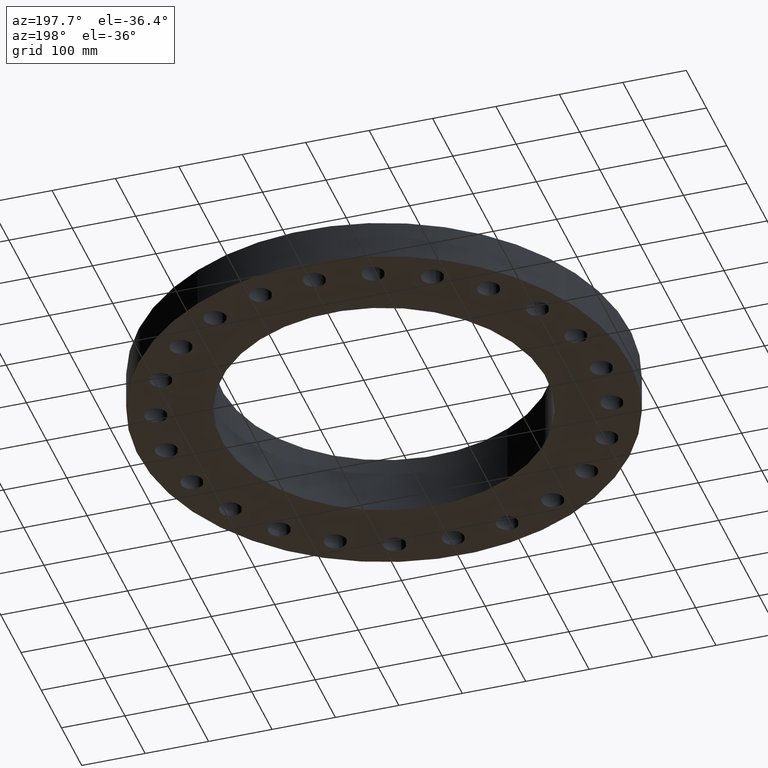
[diagram: clean part render]
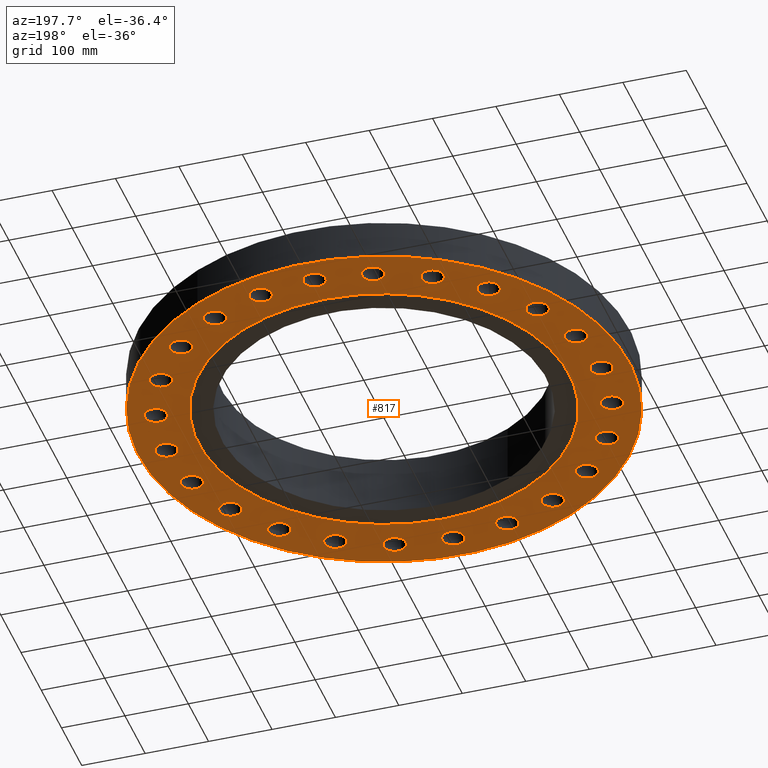
[diagram: same view with one face highlighted and labeled with its STEP entity id]
A machine part, auxiliary view. The second image highlights one B-rep face of the part: STEP entity #817.
In plain terms, the highlighted planar face has unit normal (0, 0, -1).
Its self-contained STEP definition (entity closure, byte-faithful):
#51=AXIS2_PLACEMENT_3D('Circle Axis2P3D',#49,#50,$) ;
#77=AXIS2_PLACEMENT_3D('Circle Axis2P3D',#75,#76,$) ;
#99=AXIS2_PLACEMENT_3D('Circle Axis2P3D',#97,#98,$) ;
#134=AXIS2_PLACEMENT_3D('Circle Axis2P3D',#132,#133,$) ;
#366=AXIS2_PLACEMENT_3D('Plane Axis2P3D',#363,#364,#365) ;
#370=AXIS2_PLACEMENT_3D('Circle Axis2P3D',#368,#369,$) ;
#379=AXIS2_PLACEMENT_3D('Circle Axis2P3D',#377,#378,$) ;
#405=AXIS2_PLACEMENT_3D('Circle Axis2P3D',#403,#404,$) ;
#414=AXIS2_PLACEMENT_3D('Circle Axis2P3D',#412,#413,$) ;
#423=AXIS2_PLACEMENT_3D('Circle Axis2P3D',#421,#422,$) ;
#432=AXIS2_PLACEMENT_3D('Circle Axis2P3D',#430,#431,$) ;
#441=AXIS2_PLACEMENT_3D('Circle Axis2P3D',#439,#440,$) ;
#450=AXIS2_PLACEMENT_3D('Circle Axis2P3D',#448,#449,$) ;
#459=AXIS2_PLACEMENT_3D('Circle Axis2P3D',#457,#458,$) ;
#468=AXIS2_PLACEMENT_3D('Circle Axis2P3D',#466,#467,$) ;
#477=AXIS2_PLACEMENT_3D('Circle Axis2P3D',#475,#476,$) ;
#486=AXIS2_PLACEMENT_3D('Circle Axis2P3D',#484,#485,$) ;
#495=AXIS2_PLACEMENT_3D('Circle Axis2P3D',#493,#494,$) ;
#504=AXIS2_PLACEMENT_3D('Circle Axis2P3D',#502,#503,$) ;
#513=AXIS2_PLACEMENT_3D('Circle Axis2P3D',#511,#512,$) ;
#522=AXIS2_PLACEMENT_3D('Circle Axis2P3D',#520,#521,$) ;
#531=AXIS2_PLACEMENT_3D('Circle Axis2P3D',#529,#530,$) ;
#540=AXIS2_PLACEMENT_3D('Circle Axis2P3D',#538,#539,$) ;
#549=AXIS2_PLACEMENT_3D('Circle Axis2P3D',#547,#548,$) ;
#558=AXIS2_PLACEMENT_3D('Circle Axis2P3D',#556,#557,$) ;
#567=AXIS2_PLACEMENT_3D('Circle Axis2P3D',#565,#566,$) ;
#576=AXIS2_PLACEMENT_3D('Circle Axis2P3D',#574,#575,$) ;
#585=AXIS2_PLACEMENT_3D('Circle Axis2P3D',#583,#584,$) ;
#594=AXIS2_PLACEMENT_3D('Circle Axis2P3D',#592,#593,$) ;
#603=AXIS2_PLACEMENT_3D('Circle Axis2P3D',#601,#602,$) ;
#612=AXIS2_PLACEMENT_3D('Circle Axis2P3D',#610,#611,$) ;
#621=AXIS2_PLACEMENT_3D('Circle Axis2P3D',#619,#620,$) ;
#630=AXIS2_PLACEMENT_3D('Circle Axis2P3D',#628,#629,$) ;
#639=AXIS2_PLACEMENT_3D('Circle Axis2P3D',#637,#638,$) ;
#648=AXIS2_PLACEMENT_3D('Circle Axis2P3D',#646,#647,$) ;
#657=AXIS2_PLACEMENT_3D('Circle Axis2P3D',#655,#656,$) ;
#666=AXIS2_PLACEMENT_3D('Circle Axis2P3D',#664,#665,$) ;
#675=AXIS2_PLACEMENT_3D('Circle Axis2P3D',#673,#674,$) ;
#684=AXIS2_PLACEMENT_3D('Circle Axis2P3D',#682,#683,$) ;
#693=AXIS2_PLACEMENT_3D('Circle Axis2P3D',#691,#692,$) ;
#702=AXIS2_PLACEMENT_3D('Circle Axis2P3D',#700,#701,$) ;
#711=AXIS2_PLACEMENT_3D('Circle Axis2P3D',#709,#710,$) ;
#720=AXIS2_PLACEMENT_3D('Circle Axis2P3D',#718,#719,$) ;
#729=AXIS2_PLACEMENT_3D('Circle Axis2P3D',#727,#728,$) ;
#738=AXIS2_PLACEMENT_3D('Circle Axis2P3D',#736,#737,$) ;
#747=AXIS2_PLACEMENT_3D('Circle Axis2P3D',#745,#746,$) ;
#756=AXIS2_PLACEMENT_3D('Circle Axis2P3D',#754,#755,$) ;
#765=AXIS2_PLACEMENT_3D('Circle Axis2P3D',#763,#764,$) ;
#774=AXIS2_PLACEMENT_3D('Circle Axis2P3D',#772,#773,$) ;
#783=AXIS2_PLACEMENT_3D('Circle Axis2P3D',#781,#782,$) ;
#792=AXIS2_PLACEMENT_3D('Circle Axis2P3D',#790,#791,$) ;
#801=AXIS2_PLACEMENT_3D('Circle Axis2P3D',#799,#800,$) ;
#810=AXIS2_PLACEMENT_3D('Circle Axis2P3D',#808,#809,$) ;
#44=CARTESIAN_POINT('Vertex',(12.8944680323,0.330803621638,0.)) ;
#49=CARTESIAN_POINT('Axis2P3D Location',(13.5000000001,0.,0.)) ;
#53=CARTESIAN_POINT('Vertex',(14.1055319678,-0.330803621638,0.)) ;
#75=CARTESIAN_POINT('Axis2P3D Location',(13.5000000001,0.,0.)) ;
#97=CARTESIAN_POINT('Axis2P3D Location',(0.,0.,1.67844740731E-015)) ;
#101=CARTESIAN_POINT('Vertex',(-7.31123946374,-13.3831340689,1.67844740731E-015)) ;
#103=CARTESIAN_POINT('Vertex',(7.31123946374,13.3831340689,1.67844740731E-015)) ;
#132=CARTESIAN_POINT('Axis2P3D Location',(0.,0.,1.67844740731E-015)) ;
#363=CARTESIAN_POINT('Axis2P3D Location',(0.,10.1,0.)) ;
#368=CARTESIAN_POINT('Axis2P3D Location',(0.,0.,0.)) ;
#372=CARTESIAN_POINT('Vertex',(-5.51339369397,-10.0921994618,0.)) ;
#374=CARTESIAN_POINT('Vertex',(5.51339369397,10.0921994618,0.)) ;
#377=CARTESIAN_POINT('Axis2P3D Location',(0.,0.,0.)) ;
#403=CARTESIAN_POINT('Axis2P3D Location',(13.039998655,-3.4940571089,0.)) ;
#407=CARTESIAN_POINT('Vertex',(12.5407179662,-3.01780214167,0.)) ;
#409=CARTESIAN_POINT('Vertex',(13.5392793437,-3.97031207613,0.)) ;
#412=CARTESIAN_POINT('Axis2P3D Location',(13.039998655,-3.4940571089,0.)) ;
#421=CARTESIAN_POINT('Axis2P3D Location',(11.6913429511,-6.75000000003,0.)) ;
#425=CARTESIAN_POINT('Vertex',(11.3323386951,-6.16074967617,0.)) ;
#427=CARTESIAN_POINT('Vertex',(12.0503472072,-7.33925032388,0.)) ;
#430=CARTESIAN_POINT('Axis2P3D Location',(11.6913429511,-6.75000000003,0.)) ;
#439=CARTESIAN_POINT('Axis2P3D Location',(9.54594154606,-9.54594154606,0.)) ;
#443=CARTESIAN_POINT('Vertex',(9.35167926957,-8.88385230136,0.)) ;
#445=CARTESIAN_POINT('Vertex',(9.74020382255,-10.2080307907,0.)) ;
#448=CARTESIAN_POINT('Axis2P3D Location',(9.54594154606,-9.54594154606,0.)) ;
#457=CARTESIAN_POINT('Axis2P3D Location',(6.75000000003,-11.6913429511,0.)) ;
#461=CARTESIAN_POINT('Vertex',(6.73371835618,-11.0015350735,0.)) ;
#463=CARTESIAN_POINT('Vertex',(6.76628164388,-12.3811508288,0.)) ;
#466=CARTESIAN_POINT('Axis2P3D Location',(6.75000000003,-11.6913429511,0.)) ;
#475=CARTESIAN_POINT('Axis2P3D Location',(3.4940571089,-13.039998655,0.)) ;
#479=CARTESIAN_POINT('Vertex',(3.65686566481,-12.3694814112,0.)) ;
#481=CARTESIAN_POINT('Vertex',(3.33124855299,-13.7105158987,0.)) ;
#484=CARTESIAN_POINT('Axis2P3D Location',(3.4940571089,-13.039998655,0.)) ;
#493=CARTESIAN_POINT('Axis2P3D Location',(-1.46864148139E-015,-13.5000000001,0.)) ;
#497=CARTESIAN_POINT('Vertex',(0.330803621638,-12.8944680323,0.)) ;
#499=CARTESIAN_POINT('Vertex',(-0.330803621638,-14.1055319678,0.)) ;
#502=CARTESIAN_POINT('Axis2P3D Location',(-1.53857679003E-015,-13.5000000001,0.)) ;
#511=CARTESIAN_POINT('Axis2P3D Location',(-3.4940571089,-13.039998655,0.)) ;
#515=CARTESIAN_POINT('Vertex',(-3.01780214167,-12.5407179662,0.)) ;
#517=CARTESIAN_POINT('Vertex',(-3.97031207613,-13.5392793437,-1.1189649382E-015)) ;
#520=CARTESIAN_POINT('Axis2P3D Location',(-3.4940571089,-13.039998655,0.)) ;
#529=CARTESIAN_POINT('Axis2P3D Location',(-6.75000000003,-11.6913429511,0.)) ;
#533=CARTESIAN_POINT('Vertex',(-6.16074967617,-11.3323386951,0.)) ;
#535=CARTESIAN_POINT('Vertex',(-7.33925032388,-12.0503472072,-2.23792987641E-015)) ;
#538=CARTESIAN_POINT('Axis2P3D Location',(-6.75000000003,-11.6913429511,0.)) ;
#547=CARTESIAN_POINT('Axis2P3D Location',(-9.54594154606,-9.54594154606,0.)) ;
#551=CARTESIAN_POINT('Vertex',(-8.88385230136,-9.35167926957,0.)) ;
#553=CARTESIAN_POINT('Vertex',(-10.2080307907,-9.74020382255,0.)) ;
#556=CARTESIAN_POINT('Axis2P3D Location',(-9.54594154606,-9.54594154606,0.)) ;
#565=CARTESIAN_POINT('Axis2P3D Location',(-11.6913429511,-6.75000000003,0.)) ;
#569=CARTESIAN_POINT('Vertex',(-11.0015350735,-6.73371835618,0.)) ;
#571=CARTESIAN_POINT('Vertex',(-12.3811508288,-6.76628164388,0.)) ;
#574=CARTESIAN_POINT('Axis2P3D Location',(-11.6913429511,-6.75000000003,0.)) ;
#583=CARTESIAN_POINT('Axis2P3D Location',(-13.039998655,-3.4940571089,0.)) ;
#587=CARTESIAN_POINT('Vertex',(-12.3694814112,-3.65686566481,0.)) ;
#589=CARTESIAN_POINT('Vertex',(-13.7105158987,-3.33124855299,0.)) ;
#592=CARTESIAN_POINT('Axis2P3D Location',(-13.039998655,-3.4940571089,0.)) ;
#601=CARTESIAN_POINT('Axis2P3D Location',(-13.5000000001,-2.23792987641E-015,0.)) ;
#605=CARTESIAN_POINT('Vertex',(-12.8944680323,-0.330803621638,0.)) ;
#607=CARTESIAN_POINT('Vertex',(-14.1055319678,0.330803621638,0.)) ;
#610=CARTESIAN_POINT('Axis2P3D Location',(-13.5000000001,-2.23792987641E-015,0.)) ;
#619=CARTESIAN_POINT('Axis2P3D Location',(-13.039998655,3.4940571089,0.)) ;
#623=CARTESIAN_POINT('Vertex',(-12.5407179662,3.01780214167,0.)) ;
#625=CARTESIAN_POINT('Vertex',(-13.5392793437,3.97031207613,0.)) ;
#628=CARTESIAN_POINT('Axis2P3D Location',(-13.039998655,3.4940571089,0.)) ;
#637=CARTESIAN_POINT('Axis2P3D Location',(-11.6913429511,6.75000000003,0.)) ;
#641=CARTESIAN_POINT('Vertex',(-11.3323386951,6.16074967617,0.)) ;
#643=CARTESIAN_POINT('Vertex',(-12.0503472072,7.33925032388,0.)) ;
#646=CARTESIAN_POINT('Axis2P3D Location',(-11.6913429511,6.75000000003,0.)) ;
#655=CARTESIAN_POINT('Axis2P3D Location',(-9.54594154606,9.54594154606,0.)) ;
#659=CARTESIAN_POINT('Vertex',(-9.35167926957,8.88385230136,0.)) ;
#661=CARTESIAN_POINT('Vertex',(-9.74020382255,10.2080307907,0.)) ;
#664=CARTESIAN_POINT('Axis2P3D Location',(-9.54594154606,9.54594154606,0.)) ;
#673=CARTESIAN_POINT('Axis2P3D Location',(-6.75000000003,11.6913429511,0.)) ;
#677=CARTESIAN_POINT('Vertex',(-6.73371835618,11.0015350735,0.)) ;
#679=CARTESIAN_POINT('Vertex',(-6.76628164388,12.3811508288,0.)) ;
#682=CARTESIAN_POINT('Axis2P3D Location',(-6.75000000003,11.6913429511,0.)) ;
#691=CARTESIAN_POINT('Axis2P3D Location',(-3.4940571089,13.039998655,0.)) ;
#695=CARTESIAN_POINT('Vertex',(-3.65686566481,12.3694814112,0.)) ;
#697=CARTESIAN_POINT('Vertex',(-3.33124855299,13.7105158987,0.)) ;
#700=CARTESIAN_POINT('Axis2P3D Location',(-3.4940571089,13.039998655,0.)) ;
#709=CARTESIAN_POINT('Axis2P3D Location',(-2.44773580232E-015,13.5000000001,0.)) ;
#713=CARTESIAN_POINT('Vertex',(-0.330803621638,12.8944680323,0.)) ;
#715=CARTESIAN_POINT('Vertex',(0.330803621638,14.1055319678,0.)) ;
#718=CARTESIAN_POINT('Axis2P3D Location',(-2.44773580232E-015,13.5000000001,0.)) ;
#727=CARTESIAN_POINT('Axis2P3D Location',(3.4940571089,13.039998655,0.)) ;
#731=CARTESIAN_POINT('Vertex',(3.01780214167,12.5407179662,0.)) ;
#733=CARTESIAN_POINT('Vertex',(3.97031207613,13.5392793437,0.)) ;
#736=CARTESIAN_POINT('Axis2P3D Location',(3.4940571089,13.039998655,0.)) ;
#745=CARTESIAN_POINT('Axis2P3D Location',(6.75000000003,11.6913429511,0.)) ;
#749=CARTESIAN_POINT('Vertex',(6.16074967617,11.3323386951,0.)) ;
#751=CARTESIAN_POINT('Vertex',(7.33925032388,12.0503472072,0.)) ;
#754=CARTESIAN_POINT('Axis2P3D Location',(6.75000000003,11.6913429511,0.)) ;
#763=CARTESIAN_POINT('Axis2P3D Location',(9.54594154606,9.54594154606,0.)) ;
#767=CARTESIAN_POINT('Vertex',(8.88385230136,9.35167926957,0.)) ;
#769=CARTESIAN_POINT('Vertex',(10.2080307907,9.74020382255,0.)) ;
#772=CARTESIAN_POINT('Axis2P3D Location',(9.54594154606,9.54594154606,0.)) ;
#781=CARTESIAN_POINT('Axis2P3D Location',(11.6913429511,6.75000000003,0.)) ;
#785=CARTESIAN_POINT('Vertex',(11.0015350735,6.73371835618,0.)) ;
#787=CARTESIAN_POINT('Vertex',(12.3811508288,6.76628164388,0.)) ;
#790=CARTESIAN_POINT('Axis2P3D Location',(11.6913429511,6.75000000003,0.)) ;
#799=CARTESIAN_POINT('Axis2P3D Location',(13.039998655,3.4940571089,0.)) ;
#803=CARTESIAN_POINT('Vertex',(12.3694814112,3.65686566481,0.)) ;
#805=CARTESIAN_POINT('Vertex',(13.7105158987,3.33124855299,0.)) ;
#808=CARTESIAN_POINT('Axis2P3D Location',(13.039998655,3.4940571089,0.)) ;
#50=DIRECTION('Axis2P3D Direction',(0.,-0.,-0.0393700787402)) ;
#76=DIRECTION('Axis2P3D Direction',(0.,-0.,-0.0393700787402)) ;
#98=DIRECTION('Axis2P3D Direction',(0.,0.,-0.0393700787402)) ;
#133=DIRECTION('Axis2P3D Direction',(0.,0.,-0.0393700787402)) ;
#364=DIRECTION('Axis2P3D Direction',(0.,0.,-0.0393700787402)) ;
#365=DIRECTION('Axis2P3D XDirection',(0.0393700787402,0.,0.)) ;
#369=DIRECTION('Axis2P3D Direction',(0.,0.,-0.0393700787402)) ;
#378=DIRECTION('Axis2P3D Direction',(0.,0.,-0.0393700787402)) ;
#404=DIRECTION('Axis2P3D Direction',(0.,0.,-0.0393700787402)) ;
#413=DIRECTION('Axis2P3D Direction',(0.,0.,-0.0393700787402)) ;
#422=DIRECTION('Axis2P3D Direction',(0.,0.,-0.0393700787402)) ;
#431=DIRECTION('Axis2P3D Direction',(0.,0.,-0.0393700787402)) ;
#440=DIRECTION('Axis2P3D Direction',(0.,0.,-0.0393700787402)) ;
#449=DIRECTION('Axis2P3D Direction',(0.,0.,-0.0393700787402)) ;
#458=DIRECTION('Axis2P3D Direction',(0.,0.,-0.0393700787402)) ;
#467=DIRECTION('Axis2P3D Direction',(0.,0.,-0.0393700787402)) ;
#476=DIRECTION('Axis2P3D Direction',(0.,0.,-0.0393700787402)) ;
#485=DIRECTION('Axis2P3D Direction',(0.,0.,-0.0393700787402)) ;
#494=DIRECTION('Axis2P3D Direction',(0.,0.,-0.0393700787402)) ;
#503=DIRECTION('Axis2P3D Direction',(0.,0.,-0.0393700787402)) ;
#512=DIRECTION('Axis2P3D Direction',(0.,0.,-0.0393700787402)) ;
#521=DIRECTION('Axis2P3D Direction',(0.,0.,-0.0393700787402)) ;
#530=DIRECTION('Axis2P3D Direction',(0.,0.,-0.0393700787402)) ;
#539=DIRECTION('Axis2P3D Direction',(0.,0.,-0.0393700787402)) ;
#548=DIRECTION('Axis2P3D Direction',(0.,0.,-0.0393700787402)) ;
#557=DIRECTION('Axis2P3D Direction',(0.,0.,-0.0393700787402)) ;
#566=DIRECTION('Axis2P3D Direction',(0.,0.,-0.0393700787402)) ;
#575=DIRECTION('Axis2P3D Direction',(0.,0.,-0.0393700787402)) ;
#584=DIRECTION('Axis2P3D Direction',(0.,0.,-0.0393700787402)) ;
#593=DIRECTION('Axis2P3D Direction',(0.,0.,-0.0393700787402)) ;
#602=DIRECTION('Axis2P3D Direction',(0.,0.,-0.0393700787402)) ;
#611=DIRECTION('Axis2P3D Direction',(0.,0.,-0.0393700787402)) ;
#620=DIRECTION('Axis2P3D Direction',(0.,0.,-0.0393700787402)) ;
#629=DIRECTION('Axis2P3D Direction',(0.,0.,-0.0393700787402)) ;
#638=DIRECTION('Axis2P3D Direction',(0.,0.,-0.0393700787402)) ;
#647=DIRECTION('Axis2P3D Direction',(0.,0.,-0.0393700787402)) ;
#656=DIRECTION('Axis2P3D Direction',(0.,0.,-0.0393700787402)) ;
#665=DIRECTION('Axis2P3D Direction',(0.,0.,-0.0393700787402)) ;
#674=DIRECTION('Axis2P3D Direction',(0.,0.,-0.0393700787402)) ;
#683=DIRECTION('Axis2P3D Direction',(0.,0.,-0.0393700787402)) ;
#692=DIRECTION('Axis2P3D Direction',(0.,0.,-0.0393700787402)) ;
#701=DIRECTION('Axis2P3D Direction',(0.,0.,-0.0393700787402)) ;
#710=DIRECTION('Axis2P3D Direction',(0.,0.,-0.0393700787402)) ;
#719=DIRECTION('Axis2P3D Direction',(0.,0.,-0.0393700787402)) ;
#728=DIRECTION('Axis2P3D Direction',(0.,0.,-0.0393700787402)) ;
#737=DIRECTION('Axis2P3D Direction',(0.,0.,-0.0393700787402)) ;
#746=DIRECTION('Axis2P3D Direction',(0.,0.,-0.0393700787402)) ;
#755=DIRECTION('Axis2P3D Direction',(0.,0.,-0.0393700787402)) ;
#764=DIRECTION('Axis2P3D Direction',(0.,0.,-0.0393700787402)) ;
#773=DIRECTION('Axis2P3D Direction',(0.,0.,-0.0393700787402)) ;
#782=DIRECTION('Axis2P3D Direction',(0.,0.,-0.0393700787402)) ;
#791=DIRECTION('Axis2P3D Direction',(0.,0.,-0.0393700787402)) ;
#800=DIRECTION('Axis2P3D Direction',(0.,0.,-0.0393700787402)) ;
#809=DIRECTION('Axis2P3D Direction',(0.,0.,-0.0393700787402)) ;
#392=ORIENTED_EDGE('',*,*,#105,.T.) ;
#393=ORIENTED_EDGE('',*,*,#136,.T.) ;
#396=ORIENTED_EDGE('',*,*,#79,.F.) ;
#397=ORIENTED_EDGE('',*,*,#55,.F.) ;
#400=ORIENTED_EDGE('',*,*,#381,.F.) ;
#401=ORIENTED_EDGE('',*,*,#376,.F.) ;
#418=ORIENTED_EDGE('',*,*,#411,.F.) ;
#419=ORIENTED_EDGE('',*,*,#416,.F.) ;
#436=ORIENTED_EDGE('',*,*,#429,.F.) ;
#437=ORIENTED_EDGE('',*,*,#434,.F.) ;
#454=ORIENTED_EDGE('',*,*,#447,.F.) ;
#455=ORIENTED_EDGE('',*,*,#452,.F.) ;
#472=ORIENTED_EDGE('',*,*,#465,.F.) ;
#473=ORIENTED_EDGE('',*,*,#470,.F.) ;
#490=ORIENTED_EDGE('',*,*,#483,.F.) ;
#491=ORIENTED_EDGE('',*,*,#488,.F.) ;
#508=ORIENTED_EDGE('',*,*,#501,.F.) ;
#509=ORIENTED_EDGE('',*,*,#506,.F.) ;
#526=ORIENTED_EDGE('',*,*,#519,.F.) ;
#527=ORIENTED_EDGE('',*,*,#524,.F.) ;
#544=ORIENTED_EDGE('',*,*,#537,.F.) ;
#545=ORIENTED_EDGE('',*,*,#542,.F.) ;
#562=ORIENTED_EDGE('',*,*,#555,.F.) ;
#563=ORIENTED_EDGE('',*,*,#560,.F.) ;
#580=ORIENTED_EDGE('',*,*,#573,.F.) ;
#581=ORIENTED_EDGE('',*,*,#578,.F.) ;
#598=ORIENTED_EDGE('',*,*,#591,.F.) ;
#599=ORIENTED_EDGE('',*,*,#596,.F.) ;
#616=ORIENTED_EDGE('',*,*,#609,.F.) ;
#617=ORIENTED_EDGE('',*,*,#614,.F.) ;
#634=ORIENTED_EDGE('',*,*,#627,.F.) ;
#635=ORIENTED_EDGE('',*,*,#632,.F.) ;
#652=ORIENTED_EDGE('',*,*,#645,.F.) ;
#653=ORIENTED_EDGE('',*,*,#650,.F.) ;
#670=ORIENTED_EDGE('',*,*,#663,.F.) ;
#671=ORIENTED_EDGE('',*,*,#668,.F.) ;
#688=ORIENTED_EDGE('',*,*,#681,.F.) ;
#689=ORIENTED_EDGE('',*,*,#686,.F.) ;
#706=ORIENTED_EDGE('',*,*,#699,.F.) ;
#707=ORIENTED_EDGE('',*,*,#704,.F.) ;
#724=ORIENTED_EDGE('',*,*,#717,.F.) ;
#725=ORIENTED_EDGE('',*,*,#722,.F.) ;
#742=ORIENTED_EDGE('',*,*,#735,.F.) ;
#743=ORIENTED_EDGE('',*,*,#740,.F.) ;
#760=ORIENTED_EDGE('',*,*,#753,.F.) ;
#761=ORIENTED_EDGE('',*,*,#758,.F.) ;
#778=ORIENTED_EDGE('',*,*,#771,.F.) ;
#779=ORIENTED_EDGE('',*,*,#776,.F.) ;
#796=ORIENTED_EDGE('',*,*,#789,.F.) ;
#797=ORIENTED_EDGE('',*,*,#794,.F.) ;
#814=ORIENTED_EDGE('',*,*,#807,.F.) ;
#815=ORIENTED_EDGE('',*,*,#812,.F.) ;
#398=FACE_BOUND('',#395,.T.) ;
#402=FACE_BOUND('',#399,.T.) ;
#420=FACE_BOUND('',#417,.T.) ;
#438=FACE_BOUND('',#435,.T.) ;
#456=FACE_BOUND('',#453,.T.) ;
#474=FACE_BOUND('',#471,.T.) ;
#492=FACE_BOUND('',#489,.T.) ;
#510=FACE_BOUND('',#507,.T.) ;
#528=FACE_BOUND('',#525,.T.) ;
#546=FACE_BOUND('',#543,.T.) ;
#564=FACE_BOUND('',#561,.T.) ;
#582=FACE_BOUND('',#579,.T.) ;
#600=FACE_BOUND('',#597,.T.) ;
#618=FACE_BOUND('',#615,.T.) ;
#636=FACE_BOUND('',#633,.T.) ;
#654=FACE_BOUND('',#651,.T.) ;
#672=FACE_BOUND('',#669,.T.) ;
#690=FACE_BOUND('',#687,.T.) ;
#708=FACE_BOUND('',#705,.T.) ;
#726=FACE_BOUND('',#723,.T.) ;
#744=FACE_BOUND('',#741,.T.) ;
#762=FACE_BOUND('',#759,.T.) ;
#780=FACE_BOUND('',#777,.T.) ;
#798=FACE_BOUND('',#795,.T.) ;
#816=FACE_BOUND('',#813,.T.) ;
#817=ADVANCED_FACE('PartBody',(#394,#398,#402,#420,#438,#456,#474,#492,#510,#528,#546,#564,#582,#600,#618,#636,#654,#672,#690,#708,#726,#744,#762,#780,#798,#816),#367,.T.) ;
#52=CIRCLE('generated circle',#51,0.690000000003) ;
#78=CIRCLE('generated circle',#77,0.690000000003) ;
#100=CIRCLE('generated circle',#99,15.2500000001) ;
#135=CIRCLE('generated circle',#134,15.2500000001) ;
#371=CIRCLE('generated circle',#370,11.5) ;
#380=CIRCLE('generated circle',#379,11.5) ;
#406=CIRCLE('generated circle',#405,0.690000000003) ;
#415=CIRCLE('generated circle',#414,0.690000000003) ;
#424=CIRCLE('generated circle',#423,0.690000000003) ;
#433=CIRCLE('generated circle',#432,0.690000000003) ;
#442=CIRCLE('generated circle',#441,0.690000000003) ;
#451=CIRCLE('generated circle',#450,0.690000000003) ;
#460=CIRCLE('generated circle',#459,0.690000000003) ;
#469=CIRCLE('generated circle',#468,0.690000000003) ;
#478=CIRCLE('generated circle',#477,0.690000000003) ;
#487=CIRCLE('generated circle',#486,0.690000000003) ;
#496=CIRCLE('generated circle',#495,0.690000000003) ;
#505=CIRCLE('generated circle',#504,0.690000000003) ;
#514=CIRCLE('generated circle',#513,0.690000000003) ;
#523=CIRCLE('generated circle',#522,0.690000000003) ;
#532=CIRCLE('generated circle',#531,0.690000000003) ;
#541=CIRCLE('generated circle',#540,0.690000000003) ;
#550=CIRCLE('generated circle',#549,0.690000000003) ;
#559=CIRCLE('generated circle',#558,0.690000000003) ;
#568=CIRCLE('generated circle',#567,0.690000000003) ;
#577=CIRCLE('generated circle',#576,0.690000000003) ;
#586=CIRCLE('generated circle',#585,0.690000000003) ;
#595=CIRCLE('generated circle',#594,0.690000000003) ;
#604=CIRCLE('generated circle',#603,0.690000000003) ;
#613=CIRCLE('generated circle',#612,0.690000000003) ;
#622=CIRCLE('generated circle',#621,0.690000000003) ;
#631=CIRCLE('generated circle',#630,0.690000000003) ;
#640=CIRCLE('generated circle',#639,0.690000000003) ;
#649=CIRCLE('generated circle',#648,0.690000000003) ;
#658=CIRCLE('generated circle',#657,0.690000000003) ;
#667=CIRCLE('generated circle',#666,0.690000000003) ;
#676=CIRCLE('generated circle',#675,0.690000000003) ;
#685=CIRCLE('generated circle',#684,0.690000000003) ;
#694=CIRCLE('generated circle',#693,0.690000000003) ;
#703=CIRCLE('generated circle',#702,0.690000000003) ;
#712=CIRCLE('generated circle',#711,0.690000000003) ;
#721=CIRCLE('generated circle',#720,0.690000000003) ;
#730=CIRCLE('generated circle',#729,0.690000000003) ;
#739=CIRCLE('generated circle',#738,0.690000000003) ;
#748=CIRCLE('generated circle',#747,0.690000000003) ;
#757=CIRCLE('generated circle',#756,0.690000000003) ;
#766=CIRCLE('generated circle',#765,0.690000000003) ;
#775=CIRCLE('generated circle',#774,0.690000000003) ;
#784=CIRCLE('generated circle',#783,0.690000000003) ;
#793=CIRCLE('generated circle',#792,0.690000000003) ;
#802=CIRCLE('generated circle',#801,0.690000000003) ;
#811=CIRCLE('generated circle',#810,0.690000000003) ;
#55=EDGE_CURVE('',#45,#54,#52,.T.) ;
#79=EDGE_CURVE('',#54,#45,#78,.T.) ;
#105=EDGE_CURVE('',#102,#104,#100,.T.) ;
#136=EDGE_CURVE('',#104,#102,#135,.T.) ;
#376=EDGE_CURVE('',#373,#375,#371,.T.) ;
#381=EDGE_CURVE('',#375,#373,#380,.T.) ;
#411=EDGE_CURVE('',#408,#410,#406,.T.) ;
#416=EDGE_CURVE('',#410,#408,#415,.T.) ;
#429=EDGE_CURVE('',#426,#428,#424,.T.) ;
#434=EDGE_CURVE('',#428,#426,#433,.T.) ;
#447=EDGE_CURVE('',#444,#446,#442,.T.) ;
#452=EDGE_CURVE('',#446,#444,#451,.T.) ;
#465=EDGE_CURVE('',#462,#464,#460,.T.) ;
#470=EDGE_CURVE('',#464,#462,#469,.T.) ;
#483=EDGE_CURVE('',#480,#482,#478,.T.) ;
#488=EDGE_CURVE('',#482,#480,#487,.T.) ;
#501=EDGE_CURVE('',#498,#500,#496,.T.) ;
#506=EDGE_CURVE('',#500,#498,#505,.T.) ;
#519=EDGE_CURVE('',#516,#518,#514,.T.) ;
#524=EDGE_CURVE('',#518,#516,#523,.T.) ;
#537=EDGE_CURVE('',#534,#536,#532,.T.) ;
#542=EDGE_CURVE('',#536,#534,#541,.T.) ;
#555=EDGE_CURVE('',#552,#554,#550,.T.) ;
#560=EDGE_CURVE('',#554,#552,#559,.T.) ;
#573=EDGE_CURVE('',#570,#572,#568,.T.) ;
#578=EDGE_CURVE('',#572,#570,#577,.T.) ;
#591=EDGE_CURVE('',#588,#590,#586,.T.) ;
#596=EDGE_CURVE('',#590,#588,#595,.T.) ;
#609=EDGE_CURVE('',#606,#608,#604,.T.) ;
#614=EDGE_CURVE('',#608,#606,#613,.T.) ;
#627=EDGE_CURVE('',#624,#626,#622,.T.) ;
#632=EDGE_CURVE('',#626,#624,#631,.T.) ;
#645=EDGE_CURVE('',#642,#644,#640,.T.) ;
#650=EDGE_CURVE('',#644,#642,#649,.T.) ;
#663=EDGE_CURVE('',#660,#662,#658,.T.) ;
#668=EDGE_CURVE('',#662,#660,#667,.T.) ;
#681=EDGE_CURVE('',#678,#680,#676,.T.) ;
#686=EDGE_CURVE('',#680,#678,#685,.T.) ;
#699=EDGE_CURVE('',#696,#698,#694,.T.) ;
#704=EDGE_CURVE('',#698,#696,#703,.T.) ;
#717=EDGE_CURVE('',#714,#716,#712,.T.) ;
#722=EDGE_CURVE('',#716,#714,#721,.T.) ;
#735=EDGE_CURVE('',#732,#734,#730,.T.) ;
#740=EDGE_CURVE('',#734,#732,#739,.T.) ;
#753=EDGE_CURVE('',#750,#752,#748,.T.) ;
#758=EDGE_CURVE('',#752,#750,#757,.T.) ;
#771=EDGE_CURVE('',#768,#770,#766,.T.) ;
#776=EDGE_CURVE('',#770,#768,#775,.T.) ;
#789=EDGE_CURVE('',#786,#788,#784,.T.) ;
#794=EDGE_CURVE('',#788,#786,#793,.T.) ;
#807=EDGE_CURVE('',#804,#806,#802,.T.) ;
#812=EDGE_CURVE('',#806,#804,#811,.T.) ;
#391=EDGE_LOOP('',(#392,#393)) ;
#395=EDGE_LOOP('',(#396,#397)) ;
#399=EDGE_LOOP('',(#400,#401)) ;
#417=EDGE_LOOP('',(#418,#419)) ;
#435=EDGE_LOOP('',(#436,#437)) ;
#453=EDGE_LOOP('',(#454,#455)) ;
#471=EDGE_LOOP('',(#472,#473)) ;
#489=EDGE_LOOP('',(#490,#491)) ;
#507=EDGE_LOOP('',(#508,#509)) ;
#525=EDGE_LOOP('',(#526,#527)) ;
#543=EDGE_LOOP('',(#544,#545)) ;
#561=EDGE_LOOP('',(#562,#563)) ;
#579=EDGE_LOOP('',(#580,#581)) ;
#597=EDGE_LOOP('',(#598,#599)) ;
#615=EDGE_LOOP('',(#616,#617)) ;
#633=EDGE_LOOP('',(#634,#635)) ;
#651=EDGE_LOOP('',(#652,#653)) ;
#669=EDGE_LOOP('',(#670,#671)) ;
#687=EDGE_LOOP('',(#688,#689)) ;
#705=EDGE_LOOP('',(#706,#707)) ;
#723=EDGE_LOOP('',(#724,#725)) ;
#741=EDGE_LOOP('',(#742,#743)) ;
#759=EDGE_LOOP('',(#760,#761)) ;
#777=EDGE_LOOP('',(#778,#779)) ;
#795=EDGE_LOOP('',(#796,#797)) ;
#813=EDGE_LOOP('',(#814,#815)) ;
#394=FACE_OUTER_BOUND('',#391,.T.) ;
#367=PLANE('',#366) ;
#45=VERTEX_POINT('',#44) ;
#54=VERTEX_POINT('',#53) ;
#102=VERTEX_POINT('',#101) ;
#104=VERTEX_POINT('',#103) ;
#373=VERTEX_POINT('',#372) ;
#375=VERTEX_POINT('',#374) ;
#408=VERTEX_POINT('',#407) ;
#410=VERTEX_POINT('',#409) ;
#426=VERTEX_POINT('',#425) ;
#428=VERTEX_POINT('',#427) ;
#444=VERTEX_POINT('',#443) ;
#446=VERTEX_POINT('',#445) ;
#462=VERTEX_POINT('',#461) ;
#464=VERTEX_POINT('',#463) ;
#480=VERTEX_POINT('',#479) ;
#482=VERTEX_POINT('',#481) ;
#498=VERTEX_POINT('',#497) ;
#500=VERTEX_POINT('',#499) ;
#516=VERTEX_POINT('',#515) ;
#518=VERTEX_POINT('',#517) ;
#534=VERTEX_POINT('',#533) ;
#536=VERTEX_POINT('',#535) ;
#552=VERTEX_POINT('',#551) ;
#554=VERTEX_POINT('',#553) ;
#570=VERTEX_POINT('',#569) ;
#572=VERTEX_POINT('',#571) ;
#588=VERTEX_POINT('',#587) ;
#590=VERTEX_POINT('',#589) ;
#606=VERTEX_POINT('',#605) ;
#608=VERTEX_POINT('',#607) ;
#624=VERTEX_POINT('',#623) ;
#626=VERTEX_POINT('',#625) ;
#642=VERTEX_POINT('',#641) ;
#644=VERTEX_POINT('',#643) ;
#660=VERTEX_POINT('',#659) ;
#662=VERTEX_POINT('',#661) ;
#678=VERTEX_POINT('',#677) ;
#680=VERTEX_POINT('',#679) ;
#696=VERTEX_POINT('',#695) ;
#698=VERTEX_POINT('',#697) ;
#714=VERTEX_POINT('',#713) ;
#716=VERTEX_POINT('',#715) ;
#732=VERTEX_POINT('',#731) ;
#734=VERTEX_POINT('',#733) ;
#750=VERTEX_POINT('',#749) ;
#752=VERTEX_POINT('',#751) ;
#768=VERTEX_POINT('',#767) ;
#770=VERTEX_POINT('',#769) ;
#786=VERTEX_POINT('',#785) ;
#788=VERTEX_POINT('',#787) ;
#804=VERTEX_POINT('',#803) ;
#806=VERTEX_POINT('',#805) ;